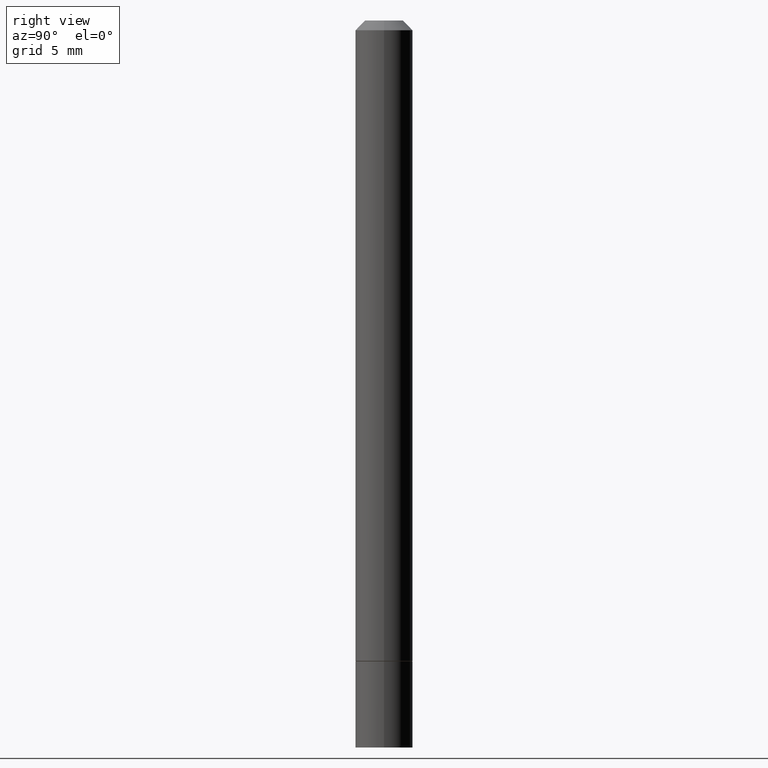
[diagram: clean part render]
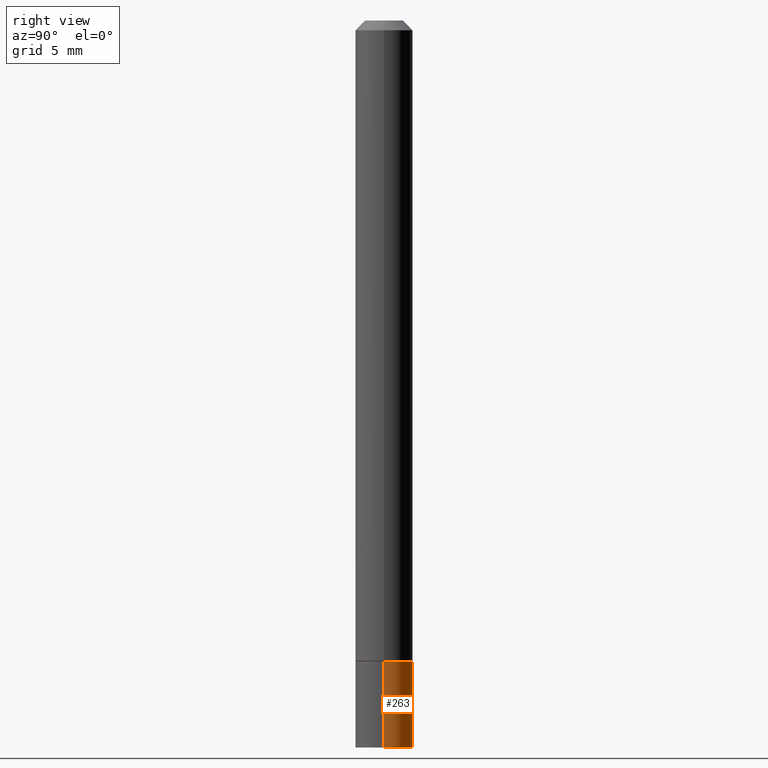
[diagram: same view with one face highlighted and labeled with its STEP entity id]
A machine part, right view. The second image highlights one B-rep face of the part: STEP entity #263.
In plain terms, the highlighted cylindrical surface (edge-blend (fillet) strip) has radius 1.4999 mm, axis along (-0, 0, 1).
Its self-contained STEP definition (entity closure, byte-faithful):
#1 = VERTEX_POINT ( 'NONE', #292 ) ;
#5 = ORIENTED_EDGE ( 'NONE', *, *, #57, .F. ) ;
#46 = LINE ( 'NONE', #130, #110 ) ;
#57 = EDGE_CURVE ( 'NONE', #211, #119, #331, .T. ) ;
#61 = VERTEX_POINT ( 'NONE', #177 ) ;
#110 = VECTOR ( 'NONE', #157, 39.37007874015748143 ) ;
#119 = VERTEX_POINT ( 'NONE', #194 ) ;
#123 = CARTESIAN_POINT ( 'NONE',  ( 3.225328808477576615E-29, -4.604914737800224341E-15, -1.318899999999999961 ) ) ;
#124 = DIRECTION ( 'NONE',  ( 1.000000000000000000, -6.982962677686270655E-15, 0.000000000000000000 ) ) ;
#130 = CARTESIAN_POINT ( 'NONE',  ( -0.05905000000000000526, 4.195754854663391971E-16, -2.904631170795522242E-30 ) ) ;
#147 = ORIENTED_EDGE ( 'NONE', *, *, #202, .T. ) ;
#151 = LINE ( 'NONE', #185, #170 ) ;
#157 = DIRECTION ( 'NONE',  ( -2.445468806185136877E-29, 3.491481338843145188E-15, 1.000000000000000000 ) ) ;
#161 = CYLINDRICAL_SURFACE ( 'NONE', #171, 0.05905000000000000526 ) ;
#169 = ORIENTED_EDGE ( 'NONE', *, *, #186, .F. ) ;
#170 = VECTOR ( 'NONE', #214, 39.37007874015748143 ) ;
#171 = AXIS2_PLACEMENT_3D ( 'NONE', #267, #246, #347 ) ;
#173 = EDGE_LOOP ( 'NONE', ( #147, #266, #5, #169 ) ) ;
#177 = CARTESIAN_POINT ( 'NONE',  ( -0.05905000000000002608, -4.494684498955387902E-15, -1.496099999999999985 ) ) ;
#185 = CARTESIAN_POINT ( 'NONE',  ( 0.05905000000000000526, -4.123439461173741313E-16, 2.879382386107500571E-30 ) ) ;
#186 = EDGE_CURVE ( 'NONE', #1, #211, #151, .T. ) ;
#194 = CARTESIAN_POINT ( 'NONE',  ( -0.05904999999999999832, -4.494684498955387902E-15, -1.318899999999999961 ) ) ;
#195 = EDGE_CURVE ( 'NONE', #61, #119, #46, .T. ) ;
#202 = EDGE_CURVE ( 'NONE', #1, #61, #308, .T. ) ;
#211 = VERTEX_POINT ( 'NONE', #355 ) ;
#214 = DIRECTION ( 'NONE',  ( -2.445468806185136877E-29, 3.491481338843145188E-15, 1.000000000000000000 ) ) ;
#244 = CARTESIAN_POINT ( 'NONE',  ( 3.658665880933582389E-29, -5.223605231043229660E-15, -1.496099999999999985 ) ) ;
#246 = DIRECTION ( 'NONE',  ( -2.445468806185136597E-29, 3.491481338843145583E-15, 1.000000000000000000 ) ) ;
#263 = ADVANCED_FACE ( 'NONE', ( #293 ), #161, .T. ) ;
#266 = ORIENTED_EDGE ( 'NONE', *, *, #195, .T. ) ;
#267 = CARTESIAN_POINT ( 'NONE',  ( 0.000000000000000000, 0.000000000000000000, 0.000000000000000000 ) ) ;
#290 = DIRECTION ( 'NONE',  ( -2.445468806185136597E-29, 3.491481338843145583E-15, 1.000000000000000000 ) ) ;
#292 = CARTESIAN_POINT ( 'NONE',  ( 0.05905000000000001914, -5.635949177160603791E-15, -1.496099999999999985 ) ) ;
#293 = FACE_OUTER_BOUND ( 'NONE', #173, .T. ) ;
#296 = DIRECTION ( 'NONE',  ( -2.445468806185136597E-29, 3.491481338843145583E-15, 1.000000000000000000 ) ) ;
#308 = CIRCLE ( 'NONE', #364, 0.05905000000000001914 ) ;
#309 = AXIS2_PLACEMENT_3D ( 'NONE', #123, #290, #346 ) ;
#331 = CIRCLE ( 'NONE', #309, 0.05904999999999999832 ) ;
#346 = DIRECTION ( 'NONE',  ( 1.000000000000000000, -6.982962677686273021E-15, 0.000000000000000000 ) ) ;
#347 = DIRECTION ( 'NONE',  ( 1.000000000000000000, -6.982962677686267499E-15, 4.876176775795936353E-29 ) ) ;
#355 = CARTESIAN_POINT ( 'NONE',  ( 0.05904999999999999832, -5.017258683917598472E-15, -1.318899999999999961 ) ) ;
#364 = AXIS2_PLACEMENT_3D ( 'NONE', #244, #296, #124 ) ;